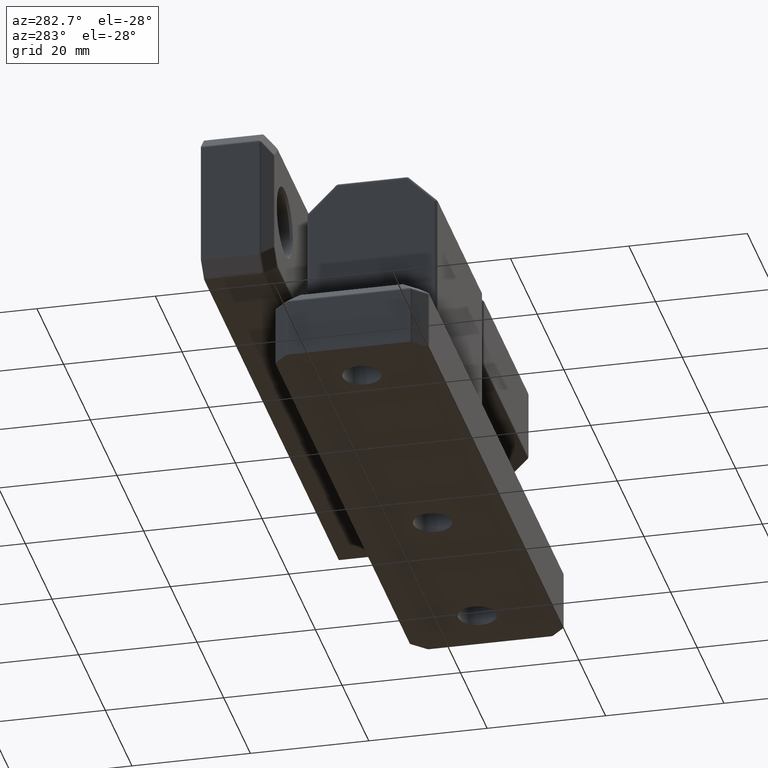
[diagram: clean part render]
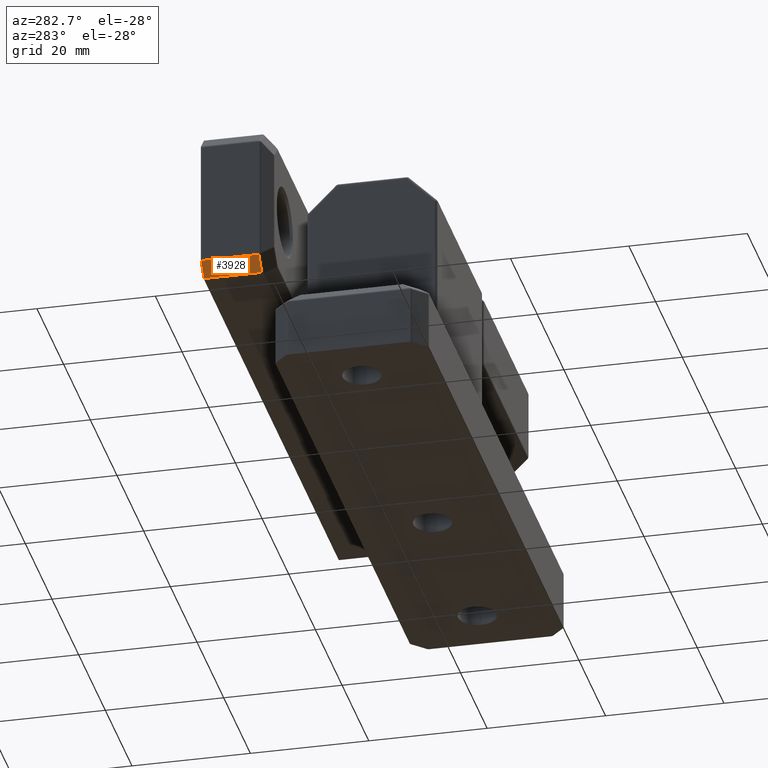
[diagram: same view with one face highlighted and labeled with its STEP entity id]
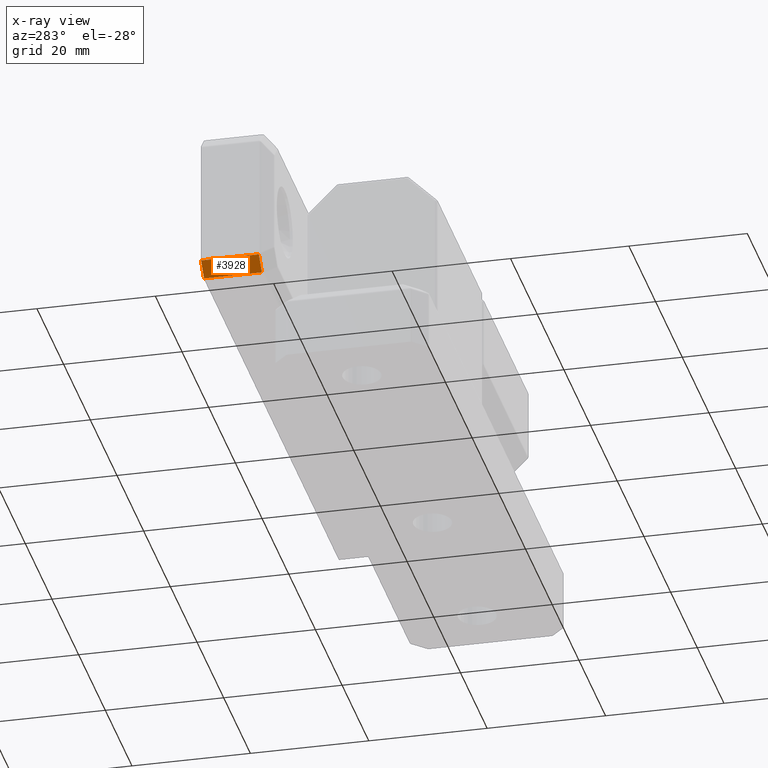
[diagram: x-ray of the same camera — body ghosted, the highlighted face saturated]
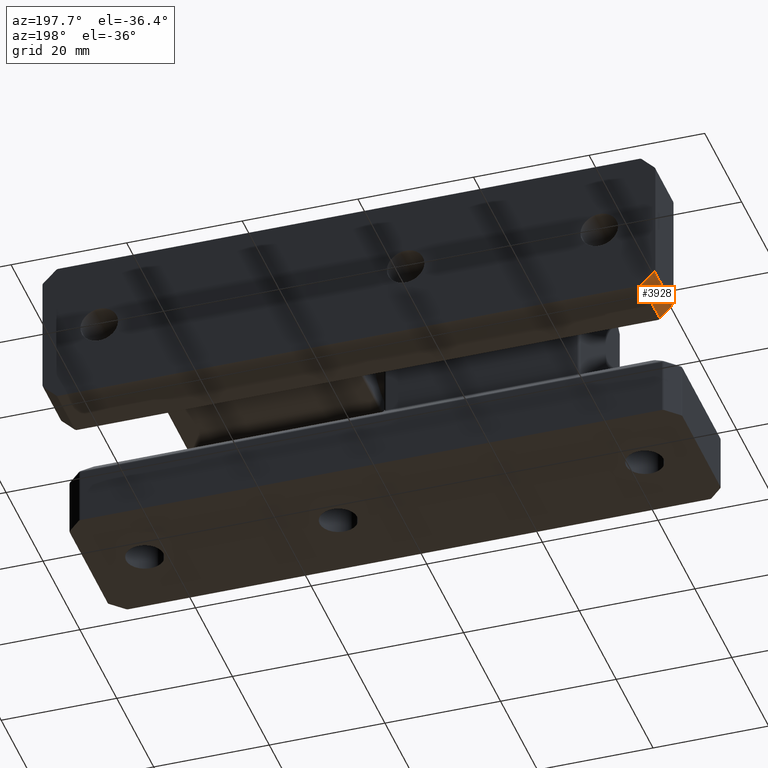
[diagram: same view with one face highlighted and labeled with its STEP entity id]
A machine part, auxiliary view. The second image highlights one B-rep face of the part: STEP entity #3928.
The next image is the same camera in x-ray: the body ghosted, the highlighted face saturated — about 0% of this face is hidden behind the body in this view.
A second angle (auxiliary view) of the same face is appended — the face is thin or edge-on in the first view.
In plain terms, the highlighted planar face has unit normal (-0.7071, 0, -0.7071).
Its self-contained STEP definition (entity closure, byte-faithful):
#139=PLANE('',#4460);
#309=LINE('',#6579,#559);
#378=LINE('',#6905,#628);
#381=LINE('',#6912,#631);
#428=LINE('',#7219,#678);
#559=VECTOR('',#5201,9.7664360835059);
#628=VECTOR('',#5510,9.76643608350589);
#631=VECTOR('',#5519,3.12132034355964);
#678=VECTOR('',#5758,3.12132034355964);
#1067=FACE_OUTER_BOUND('',#1366,.T.);
#1366=EDGE_LOOP('',(#3529,#3530,#3531,#3532));
#1837=VERTEX_POINT('',#6569);
#1839=VERTEX_POINT('',#6577);
#1841=VERTEX_POINT('',#6583);
#1919=VERTEX_POINT('',#6901);
#2266=EDGE_CURVE('',#1839,#1837,#309,.T.);
#2407=EDGE_CURVE('',#1841,#1919,#378,.T.);
#2411=EDGE_CURVE('',#1837,#1841,#381,.T.);
#2508=EDGE_CURVE('',#1839,#1919,#428,.T.);
#3529=ORIENTED_EDGE('',*,*,#2266,.F.);
#3530=ORIENTED_EDGE('',*,*,#2508,.T.);
#3531=ORIENTED_EDGE('',*,*,#2407,.F.);
#3532=ORIENTED_EDGE('',*,*,#2411,.F.);
#3928=ADVANCED_FACE('',(#1067),#139,.T.);
#4460=AXIS2_PLACEMENT_3D('',#7218,#5756,#5757);
#5201=DIRECTION('',(0.,0.,1.));
#5510=DIRECTION('',(0.,0.,-1.));
#5519=DIRECTION('',(-0.707106781186547,0.707106781186547,-2.65149291324551E-15));
#5756=DIRECTION('center_axis',(0.707106781186548,0.707106781186548,0.));
#5757=DIRECTION('ref_axis',(0.,0.,-1.));
#5758=DIRECTION('',(-0.707106781186547,0.707106781186547,0.));
#6569=CARTESIAN_POINT('',(52.8535533905933,10.6464466094067,9.7664360835059));
#6577=CARTESIAN_POINT('',(52.8535533905933,10.6464466094067,0.));
#6579=CARTESIAN_POINT('',(52.8535533905933,10.6464466094067,0.));
#6583=CARTESIAN_POINT('',(50.6464466094068,12.8535533905933,9.76643608350589));
#6901=CARTESIAN_POINT('',(50.6464466094068,12.8535533905933,0.));
#6905=CARTESIAN_POINT('',(50.6464466094068,12.8535533905933,0.));
#6912=CARTESIAN_POINT('',(51.75,11.75,9.7664360835059));
#7218=CARTESIAN_POINT('Origin',(51.75,11.75,0.));
#7219=CARTESIAN_POINT('',(41.75,21.75,0.));